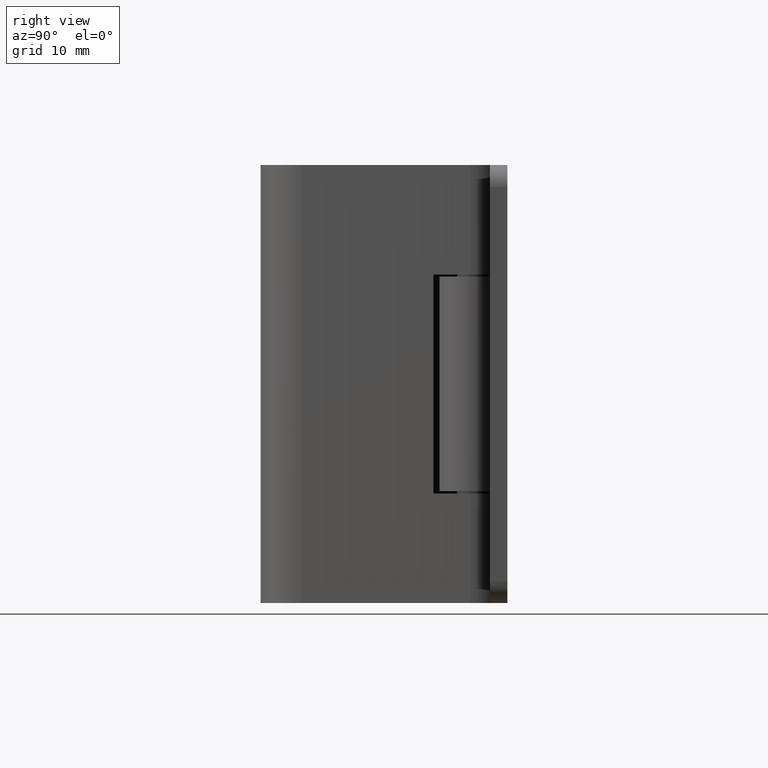
[diagram: clean part render]
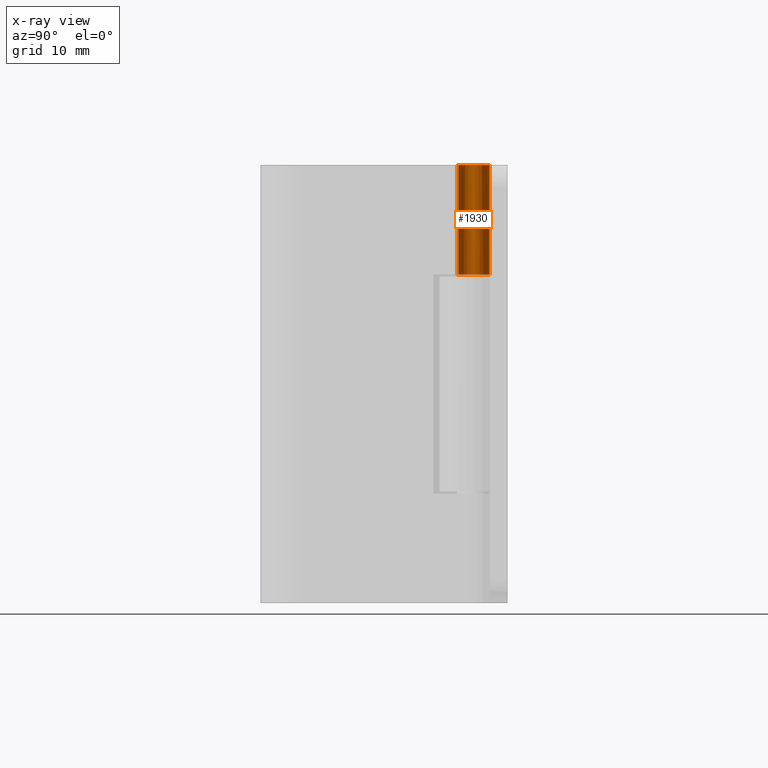
[diagram: x-ray — body ghosted, one internal face saturated and labeled with its STEP entity id]
A machine part, right view, then the same camera in x-ray: the body is ghosted and one INTERNAL B-rep face — a face not visible from any outside direction — is saturated and labeled: STEP entity #1930.
In plain terms, the highlighted face is a freeform B-spline surface patch.
Its self-contained STEP definition (entity closure, byte-faithful):
#967=CARTESIAN_POINT('',(1.494293089376796,-0.130732978412548,30.0));
#968=VERTEX_POINT('',#967);
#974=CARTESIAN_POINT('',(0.583393261445283,-1.381901697842590,30.0));
#975=VERTEX_POINT('',#974);
#976=CARTESIAN_POINT('',(1.494293089376796,-0.130732978412548,30.0));
#977=CARTESIAN_POINT('',(1.593653232934440,1.004976251064014,30.0));
#978=CARTESIAN_POINT('',(0.525997943553856,1.404751281678403,30.0));
#979=CARTESIAN_POINT('',(-0.541657345826727,1.804526312292790,30.0));
#980=CARTESIAN_POINT('',(-1.212662348160962,0.882864672162582,30.0));
#981=CARTESIAN_POINT('',(-1.883667350495198,-0.038796967967628,30.0));
#982=CARTESIAN_POINT('',(-1.175281486942850,-0.932047974328255,30.0));
#983=CARTESIAN_POINT('',(-0.466895623390504,-1.825298980688880,30.0));
#984=CARTESIAN_POINT('',(0.583393261445282,-1.381901697842591,30.0));
#992=(BOUNDED_CURVE()B_SPLINE_CURVE(2,(#976,#977,#978,#979,#980,#981,#982,#983,#984),.UNSPECIFIED.,.F.,.U.)B_SPLINE_CURVE_WITH_KNOTS((3,2,2,2,3),(0.0,0.250000000000000,0.500000000000000,0.750000000000000,1.0),.UNSPECIFIED.)CURVE()GEOMETRIC_REPRESENTATION_ITEM()RATIONAL_B_SPLINE_CURVE((1.0,0.796150094504954,1.0,0.796150094504954,1.0,0.796150094504954,1.0,0.796150094504954,1.0))REPRESENTATION_ITEM(''));
#993=EDGE_CURVE('',#968,#975,#992,.T.);
#1248=CARTESIAN_POINT('',(0.583393261445283,-1.381901697842590,40.0));
#1249=VERTEX_POINT('',#1248);
#1255=CARTESIAN_POINT('',(1.494292102754808,-0.130732978412548,40.0));
#1256=VERTEX_POINT('',#1255);
#1257=CARTESIAN_POINT('',(0.583393261445283,-1.381901697842591,40.0));
#1258=CARTESIAN_POINT('',(-0.466895639012999,-1.825298987284182,40.0));
#1259=CARTESIAN_POINT('',(-1.175281500300542,-0.932047957484650,40.0));
#1260=CARTESIAN_POINT('',(-1.883667361588084,-0.038796927685117,40.0));
#1261=CARTESIAN_POINT('',(-1.212662322855324,0.882864706921242,40.0));
#1262=CARTESIAN_POINT('',(-0.541657284122563,1.804526341527602,40.0));
#1263=CARTESIAN_POINT('',(0.525998003950644,1.404751259063304,40.0));
#1264=CARTESIAN_POINT('',(1.593653292023852,1.004976176599007,40.0));
#1265=CARTESIAN_POINT('',(1.494292102754808,-0.130732978412547,40.0));
#1273=(BOUNDED_CURVE()B_SPLINE_CURVE(2,(#1257,#1258,#1259,#1260,#1261,#1262,#1263,#1264,#1265),.UNSPECIFIED.,.F.,.U.)B_SPLINE_CURVE_WITH_KNOTS((3,2,2,2,3),(0.0,0.250000000000000,0.500000000000000,0.750000000000000,1.0),.UNSPECIFIED.)CURVE()GEOMETRIC_REPRESENTATION_ITEM()RATIONAL_B_SPLINE_CURVE((1.0,0.796150090168949,1.0,0.796150090168949,1.0,0.796150090168949,1.0,0.796150090168949,1.0))REPRESENTATION_ITEM(''));
#1274=EDGE_CURVE('',#1249,#1256,#1273,.T.);
#1575=CARTESIAN_POINT('',(1.494293089376796,-0.130732978412548,30.0));
#1576=CARTESIAN_POINT('',(1.494292102754808,-0.130732978412548,40.0));
#1577=QUASI_UNIFORM_CURVE('',1,(#1575,#1576),.UNSPECIFIED.,.F.,.U.);
#1578=EDGE_CURVE('',#968,#1256,#1577,.T.);
#1898=CARTESIAN_POINT('',(0.619367316456147,-1.366156699396489,29.750000000000000));
#1899=CARTESIAN_POINT('',(0.619367316456147,-1.366156699396489,40.256250000000009));
#1900=CARTESIAN_POINT('',(-1.028125665363727,-2.113071974548222,29.750000000000004));
#1901=CARTESIAN_POINT('',(-1.028125665363727,-2.113071974548222,40.256250000000016));
#1902=CARTESIAN_POINT('',(-1.457192140909079,-0.355796380634786,29.750000000000000));
#1903=CARTESIAN_POINT('',(-1.457192140909079,-0.355796380634786,40.256250000000009));
#1904=CARTESIAN_POINT('',(-1.886258616454431,1.401479213278649,29.750000000000004));
#1905=CARTESIAN_POINT('',(-1.886258616454431,1.401479213278649,40.256250000000016));
#1906=CARTESIAN_POINT('',(-0.079929582090290,1.497868906782857,29.750000000000000));
#1907=CARTESIAN_POINT('',(-0.079929582090290,1.497868906782857,40.256250000000009));
#1908=CARTESIAN_POINT('',(1.726399452273852,1.594258600287064,29.750000000000004));
#1909=CARTESIAN_POINT('',(1.726399452273852,1.594258600287064,40.256250000000016));
#1910=CARTESIAN_POINT('',(1.486781260601076,-0.198699479429301,29.750000000000000));
#1911=CARTESIAN_POINT('',(1.486781260601076,-0.198699479429301,40.256250000000009));
#1919=(BOUNDED_SURFACE()B_SPLINE_SURFACE(1,2,((#1898,#1900,#1902,#1904,#1906,#1908,#1910),(#1899,#1901,#1903,#1905,#1907,#1909,#1911)),.UNSPECIFIED.,.F.,.F.,.U.)B_SPLINE_SURFACE_WITH_KNOTS((2,2),(3,2,2,3),(0.0,10.506250000000010),(0.0,2.819123256080202,5.638246512160404,8.457369768240605),.UNSPECIFIED.)GEOMETRIC_REPRESENTATION_ITEM()RATIONAL_B_SPLINE_SURFACE(((1.0,0.638320090924328,1.0,0.638320090924328,1.0,0.638320090924328,1.0),(1.0,0.638320090924328,1.0,0.638320090924328,1.0,0.638320090924328,1.0)))REPRESENTATION_ITEM('')SURFACE());
#1920=ORIENTED_EDGE('',*,*,#993,.F.);
#1921=ORIENTED_EDGE('',*,*,#1578,.T.);
#1922=ORIENTED_EDGE('',*,*,#1274,.F.);
#1923=CARTESIAN_POINT('',(0.583393261445283,-1.381901697842590,30.0));
#1924=CARTESIAN_POINT('',(0.583393261445283,-1.381901697842590,40.0));
#1925=QUASI_UNIFORM_CURVE('',1,(#1923,#1924),.UNSPECIFIED.,.F.,.U.);
#1926=EDGE_CURVE('',#975,#1249,#1925,.T.);
#1927=ORIENTED_EDGE('',*,*,#1926,.F.);
#1928=EDGE_LOOP('',(#1920,#1921,#1922,#1927));
#1929=FACE_OUTER_BOUND('',#1928,.T.);
#1930=ADVANCED_FACE('',(#1929),#1919,.F.);